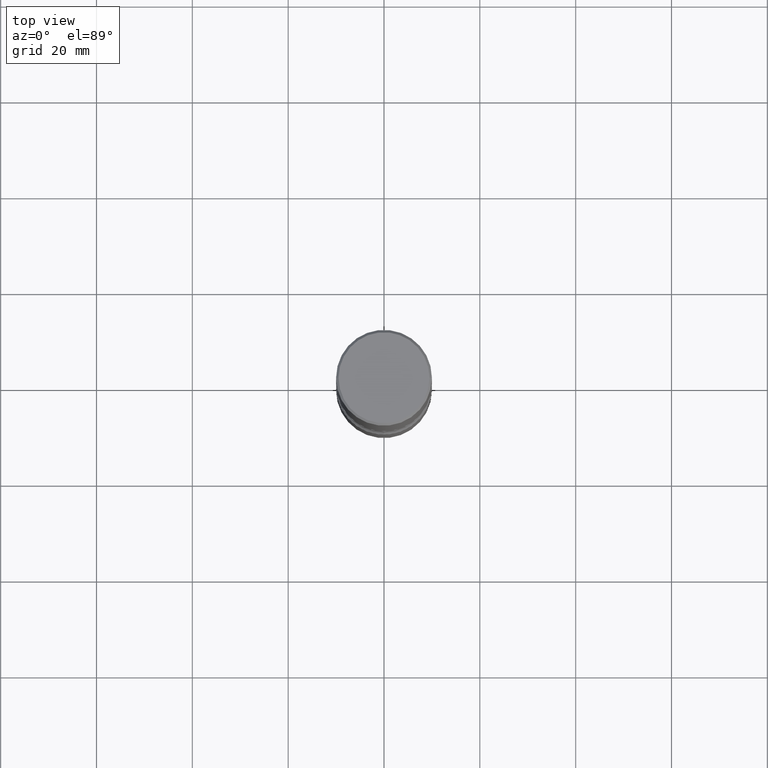
[diagram: clean part render]
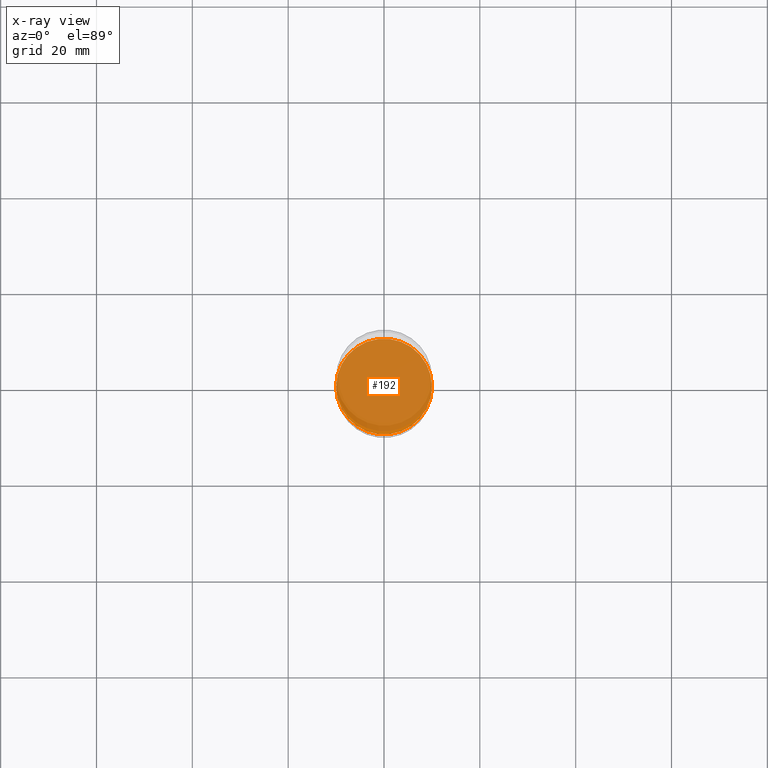
[diagram: x-ray — body ghosted, one internal face saturated and labeled with its STEP entity id]
A machine part, top view, then the same camera in x-ray: the body is ghosted and one INTERNAL B-rep face — a face not visible from any outside direction — is saturated and labeled: STEP entity #192.
In plain terms, the highlighted planar face has unit normal (0, -0, -1).
Its self-contained STEP definition (entity closure, byte-faithful):
#10 = FACE_OUTER_BOUND ( 'NONE', #75, .T. ) ;
#12 = CIRCLE ( 'NONE', #220, 0.3937000000000002720 ) ;
#75 = EDGE_LOOP ( 'NONE', ( #134, #492 ) ) ;
#77 = DIRECTION ( 'NONE',  ( -2.445468806185136597E-29, 3.491481338843145583E-15, 1.000000000000000000 ) ) ;
#120 = DIRECTION ( 'NONE',  ( -1.000000000000000000, 6.982962677686265922E-15, -4.876176775795935793E-29 ) ) ;
#129 = AXIS2_PLACEMENT_3D ( 'NONE', #150, #427, #281 ) ;
#134 = ORIENTED_EDGE ( 'NONE', *, *, #432, .T. ) ;
#149 = CARTESIAN_POINT ( 'NONE',  ( 0.3937000000000002720, -1.745740669421571411E-14, -4.212599999999998346 ) ) ;
#150 = CARTESIAN_POINT ( 'NONE',  ( 1.030178189293550378E-28, -1.470821428801063089E-14, -4.212599999999998346 ) ) ;
#192 = ADVANCED_FACE ( 'NONE', ( #10 ), #201, .F. ) ;
#200 = VERTEX_POINT ( 'NONE', #149 ) ;
#201 = PLANE ( 'NONE',  #396 ) ;
#220 = AXIS2_PLACEMENT_3D ( 'NONE', #466, #77, #551 ) ;
#281 = DIRECTION ( 'NONE',  ( 1.000000000000000000, -6.982962677686269077E-15, 0.000000000000000000 ) ) ;
#289 = CARTESIAN_POINT ( 'NONE',  ( 1.030178189293550378E-28, -1.470821428801063089E-14, -4.212599999999998346 ) ) ;
#325 = VERTEX_POINT ( 'NONE', #456 ) ;
#396 = AXIS2_PLACEMENT_3D ( 'NONE', #289, #516, #120 ) ;
#427 = DIRECTION ( 'NONE',  ( -2.445468806185136597E-29, 3.491481338843145583E-15, 1.000000000000000000 ) ) ;
#431 = CIRCLE ( 'NONE', #129, 0.3937000000000002720 ) ;
#432 = EDGE_CURVE ( 'NONE', #200, #325, #12, .T. ) ;
#456 = CARTESIAN_POINT ( 'NONE',  ( -0.3937000000000002720, -1.479738973421168625E-14, -4.212599999999998346 ) ) ;
#466 = CARTESIAN_POINT ( 'NONE',  ( 1.030178189293550378E-28, -1.470821428801063089E-14, -4.212599999999998346 ) ) ;
#492 = ORIENTED_EDGE ( 'NONE', *, *, #508, .T. ) ;
#508 = EDGE_CURVE ( 'NONE', #325, #200, #431, .T. ) ;
#516 = DIRECTION ( 'NONE',  ( 2.438088387897960049E-29, -3.491481338843145188E-15, -1.000000000000000000 ) ) ;
#551 = DIRECTION ( 'NONE',  ( 1.000000000000000000, -6.982962677686269077E-15, 0.000000000000000000 ) ) ;